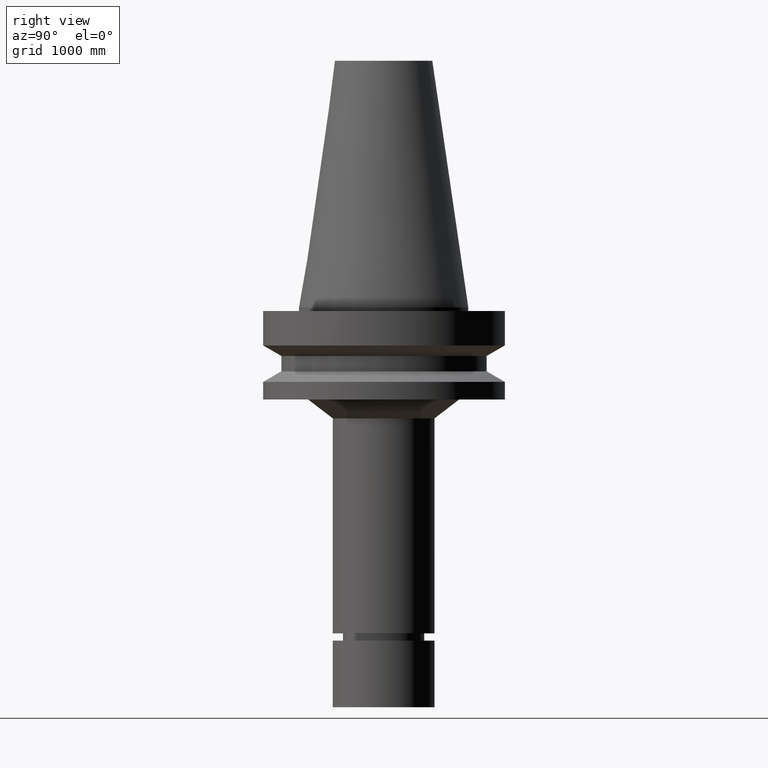
[diagram: clean part render]
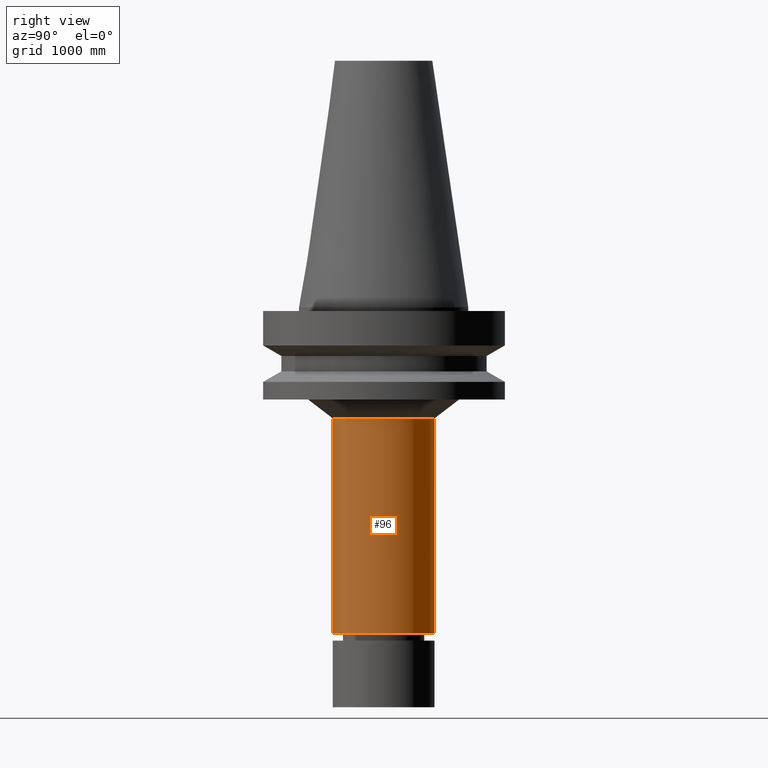
[diagram: same view with one face highlighted and labeled with its STEP entity id]
A machine part, right view. The second image highlights one B-rep face of the part: STEP entity #96.
In plain terms, the highlighted cylindrical surface (bore or boss wall) has radius 533.4 mm, axis along (-0, -0, 1).
Its self-contained STEP definition (entity closure, byte-faithful):
#96=ADVANCED_FACE('Unnamed[1]',(#232,#233),#234,.T.);
#138=EDGE_CURVE('Unnamed[1]',#297,#297,#298,.T.);
#159=EDGE_CURVE('Unnamed[1]',#330,#330,#331,.T.);
#232=FACE_BOUND('',#415,.T.);
#233=FACE_BOUND('',#416,.T.);
#234=CYLINDRICAL_SURFACE('',#417,20.9999999999967);
#297=VERTEX_POINT('',#495);
#298=CIRCLE('',#496,21.0000000000002);
#330=VERTEX_POINT('',#536);
#331=CIRCLE('',#537,20.9999999999932);
#415=EDGE_LOOP('',(#612));
#416=EDGE_LOOP('',(#613));
#417=AXIS2_PLACEMENT_3D('',#614,#615,#616);
#495=CARTESIAN_POINT('',(8.23574972426594E-015,21.0000000000003,-134.5));
#496=AXIS2_PLACEMENT_3D('',#685,#686,#687);
#536=CARTESIAN_POINT('',(2.80228874472394E-015,20.9999999999932,-45.7648482268521));
#537=AXIS2_PLACEMENT_3D('',#723,#724,#725);
#612=ORIENTED_EDGE('',*,*,#159,.F.);
#613=ORIENTED_EDGE('',*,*,#138,.T.);
#614=CARTESIAN_POINT('',(5.51901923449494E-015,1.82635218867588E-014,-90.132424113426));
#615=DIRECTION('',(-6.12323399573677E-017,-2.72265846766314E-017,1.0));
#616=DIRECTION('',(-6.49430021957265E-033,1.0,2.72265846766314E-017));
#685=CARTESIAN_POINT('',(8.23574972426594E-015,1.94714994485319E-014,-134.5));
#686=DIRECTION('',(-6.12323399573677E-017,-2.72265846766268E-017,1.0));
#687=DIRECTION('',(-6.49430021956302E-033,1.0,2.72265846766268E-017));
#723=CARTESIAN_POINT('',(2.80228874472394E-015,1.70555443249858E-014,-45.7648482268521));
#724=DIRECTION('',(-6.12323399573677E-017,-2.72265846766359E-017,1.0));
#725=DIRECTION('',(-6.4943002195652E-033,1.0,2.72265846766359E-017));